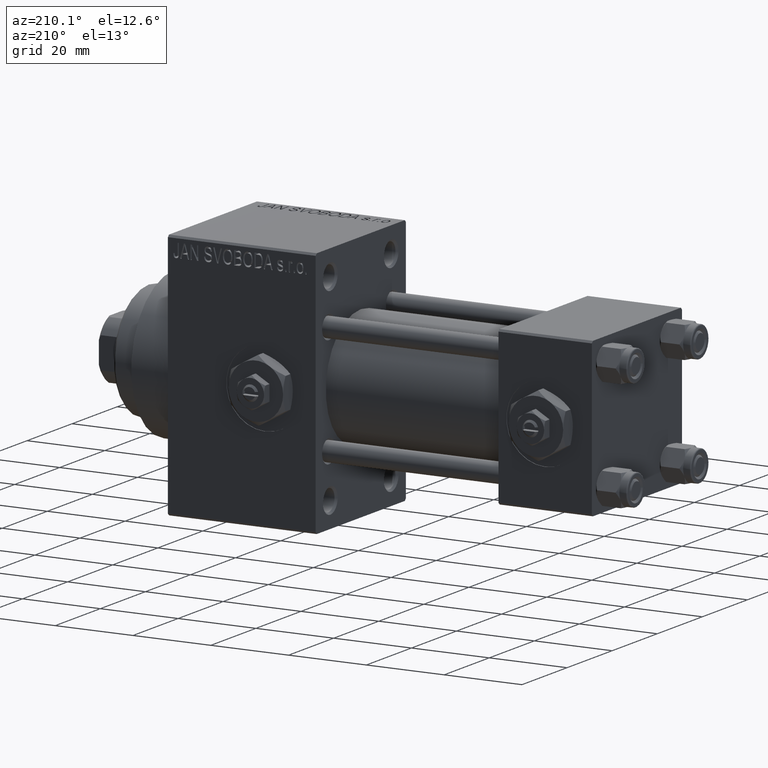
[diagram: clean part render]
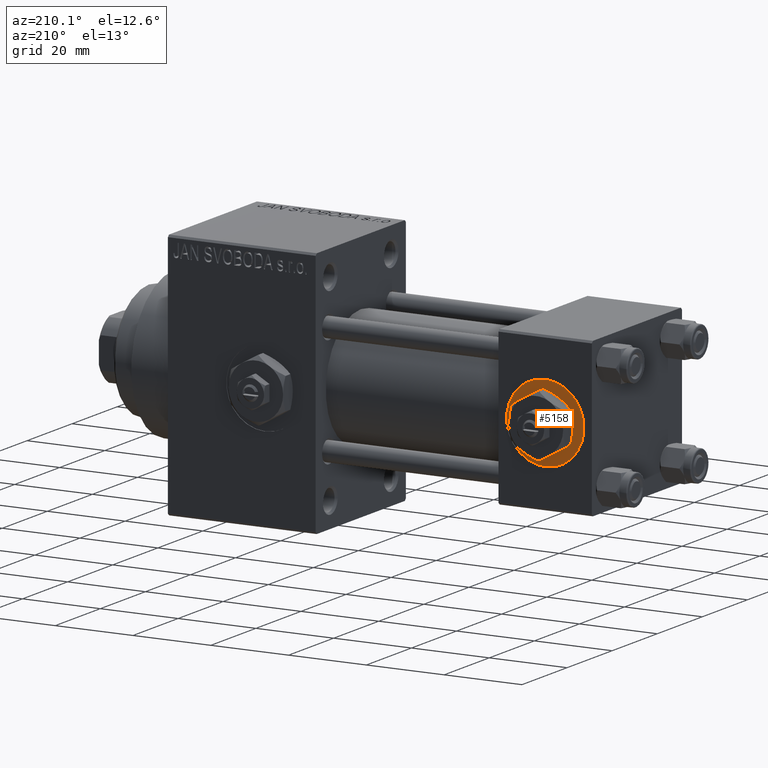
[diagram: same view with one face highlighted and labeled with its STEP entity id]
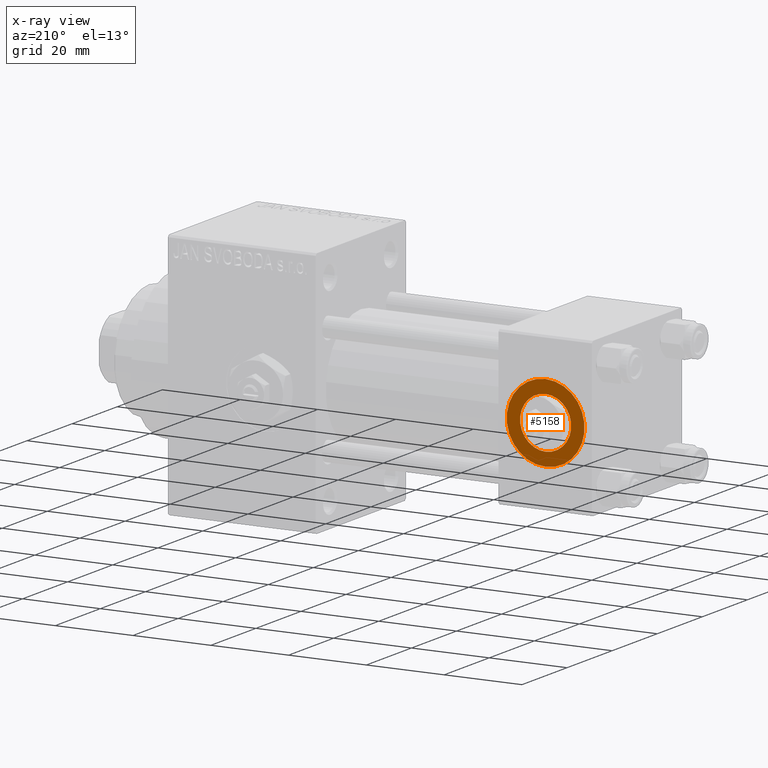
[diagram: x-ray of the same camera — body ghosted, the highlighted face saturated]
A machine part, auxiliary view. The second image highlights one B-rep face of the part: STEP entity #5158.
The next image is the same camera in x-ray: the body ghosted, the highlighted face saturated — about 0% of this face is hidden behind the body in this view.
In plain terms, the highlighted planar face has unit normal (0, 1, 0).
Its self-contained STEP definition (entity closure, byte-faithful):
#84 = CARTESIAN_POINT ( 'NONE',  ( 12.00000000000000000, 19.80000000000000071, 0.000000000000000000 ) ) ;
#898 = DIRECTION ( 'NONE',  ( 0.000000000000000000, 1.000000000000000000, 0.000000000000000000 ) ) ;
#3263 = CARTESIAN_POINT ( 'NONE',  ( 12.00000000000000000, 19.80000000000000071, 0.000000000000000000 ) ) ;
#5158 = ADVANCED_FACE ( 'NONE', ( #39332, #46530 ), #35372, .T. ) ;
#5410 = CARTESIAN_POINT ( 'NONE',  ( 12.00000000000000000, 19.80000000000000071, 0.000000000000000000 ) ) ;
#5466 = AXIS2_PLACEMENT_3D ( 'NONE', #5410, #46031, #20518 ) ;
#6243 = DIRECTION ( 'NONE',  ( 0.000000000000000000, 0.000000000000000000, 1.000000000000000000 ) ) ;
#6736 = CARTESIAN_POINT ( 'NONE',  ( 12.00000000000000178, 19.80000000000000071, -10.00000000000000000 ) ) ;
#9898 = CIRCLE ( 'NONE', #32768, 10.00000000000000000 ) ;
#11562 = EDGE_LOOP ( 'NONE', ( #48964, #45240 ) ) ;
#11672 = ORIENTED_EDGE ( 'NONE', *, *, #38505, .F. ) ;
#12619 = CARTESIAN_POINT ( 'NONE',  ( 12.00000000000000000, 19.80000000000000071, 0.000000000000000000 ) ) ;
#18431 = EDGE_CURVE ( 'NONE', #20393, #44584, #33344, .T. ) ;
#19919 = CARTESIAN_POINT ( 'NONE',  ( 12.00000000000000000, 19.80000000000000071, 6.579999999999998295 ) ) ;
#20007 = EDGE_CURVE ( 'NONE', #37935, #41774, #42113, .T. ) ;
#20393 = VERTEX_POINT ( 'NONE', #32444 ) ;
#20518 = DIRECTION ( 'NONE',  ( 0.000000000000000000, -0.000000000000000000, 1.000000000000000000 ) ) ;
#20784 = AXIS2_PLACEMENT_3D ( 'NONE', #31589, #898, #34824 ) ;
#22873 = DIRECTION ( 'NONE',  ( 0.000000000000000000, 1.000000000000000000, 0.000000000000000000 ) ) ;
#25650 = ORIENTED_EDGE ( 'NONE', *, *, #18431, .F. ) ;
#25742 = EDGE_LOOP ( 'NONE', ( #11672, #25650 ) ) ;
#27219 = DIRECTION ( 'NONE',  ( 0.000000000000000000, 1.000000000000000000, 0.000000000000000000 ) ) ;
#28688 = CIRCLE ( 'NONE', #48506, 6.579999999999998295 ) ;
#29740 = DIRECTION ( 'NONE',  ( 0.000000000000000000, 1.000000000000000000, 0.000000000000000000 ) ) ;
#29808 = DIRECTION ( 'NONE',  ( 0.000000000000000000, 0.000000000000000000, 1.000000000000000000 ) ) ;
#31589 = CARTESIAN_POINT ( 'NONE',  ( 12.00000000000000000, 19.80000000000000071, 0.000000000000000000 ) ) ;
#32444 = CARTESIAN_POINT ( 'NONE',  ( 12.00000000000000000, 19.80000000000000071, -6.579999999999998295 ) ) ;
#32558 = AXIS2_PLACEMENT_3D ( 'NONE', #3263, #29740, #6243 ) ;
#32768 = AXIS2_PLACEMENT_3D ( 'NONE', #12619, #27219, #39092 ) ;
#33344 = CIRCLE ( 'NONE', #32558, 6.579999999999998295 ) ;
#34824 = DIRECTION ( 'NONE',  ( 0.000000000000000000, 0.000000000000000000, 1.000000000000000000 ) ) ;
#35372 = PLANE ( 'NONE',  #5466 ) ;
#37935 = VERTEX_POINT ( 'NONE', #6736 ) ;
#38505 = EDGE_CURVE ( 'NONE', #44584, #20393, #28688, .T. ) ;
#39092 = DIRECTION ( 'NONE',  ( 0.000000000000000000, 0.000000000000000000, 1.000000000000000000 ) ) ;
#39332 = FACE_BOUND ( 'NONE', #25742, .T. ) ;
#41774 = VERTEX_POINT ( 'NONE', #44409 ) ;
#42113 = CIRCLE ( 'NONE', #20784, 10.00000000000000000 ) ;
#42408 = EDGE_CURVE ( 'NONE', #41774, #37935, #9898, .T. ) ;
#44409 = CARTESIAN_POINT ( 'NONE',  ( 12.00000000000000000, 19.80000000000000071, 10.00000000000000000 ) ) ;
#44584 = VERTEX_POINT ( 'NONE', #19919 ) ;
#45240 = ORIENTED_EDGE ( 'NONE', *, *, #20007, .T. ) ;
#46031 = DIRECTION ( 'NONE',  ( 0.000000000000000000, 1.000000000000000000, 0.000000000000000000 ) ) ;
#46530 = FACE_OUTER_BOUND ( 'NONE', #11562, .T. ) ;
#48506 = AXIS2_PLACEMENT_3D ( 'NONE', #84, #22873, #29808 ) ;
#48964 = ORIENTED_EDGE ( 'NONE', *, *, #42408, .T. ) ;